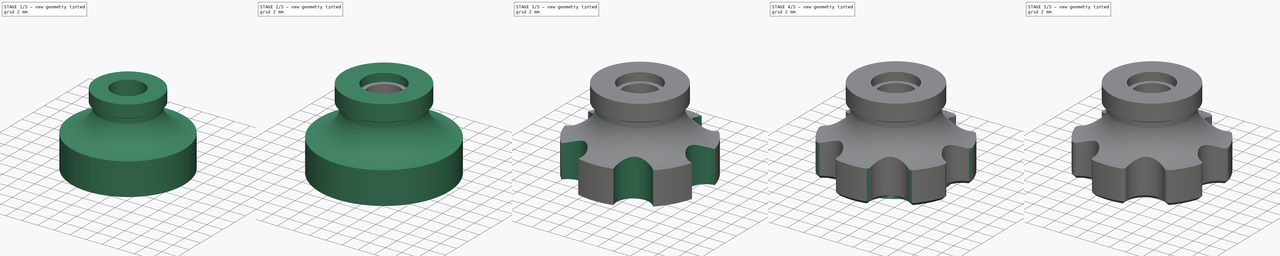
[diagram: build sequence overview — one tinted view per stage of 5, left to right]
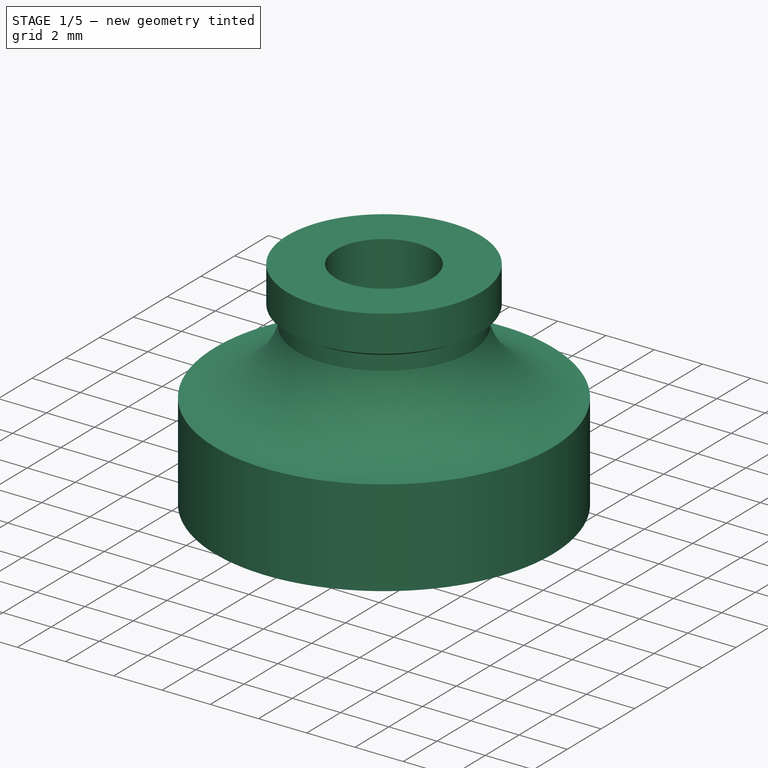
[diagram: stage 1 of 5 — iso view after this stage's code; geometry added in this stage tinted green]
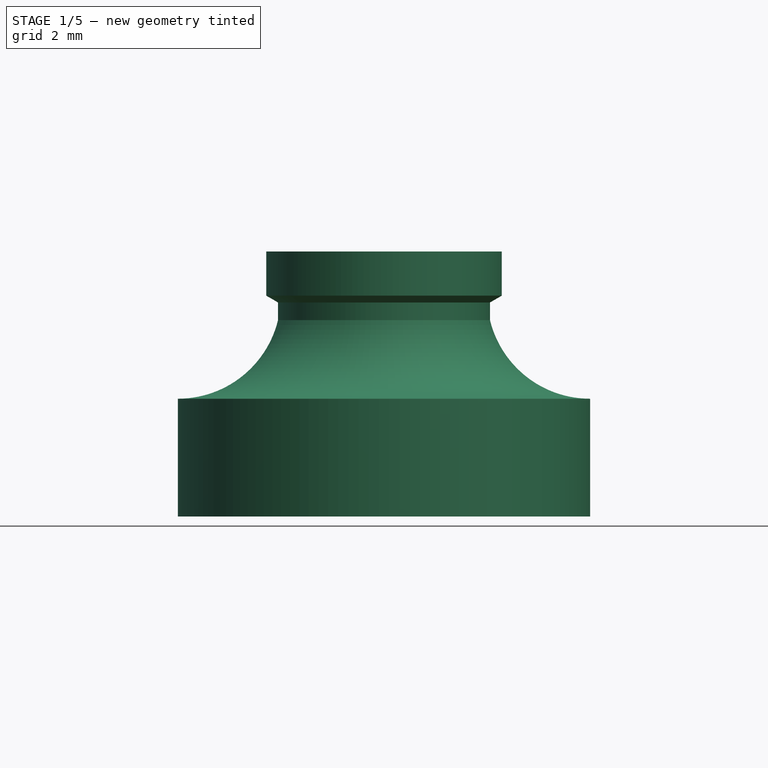
[diagram: stage 1 of 5 — front view after this stage's code; geometry added in this stage tinted green]
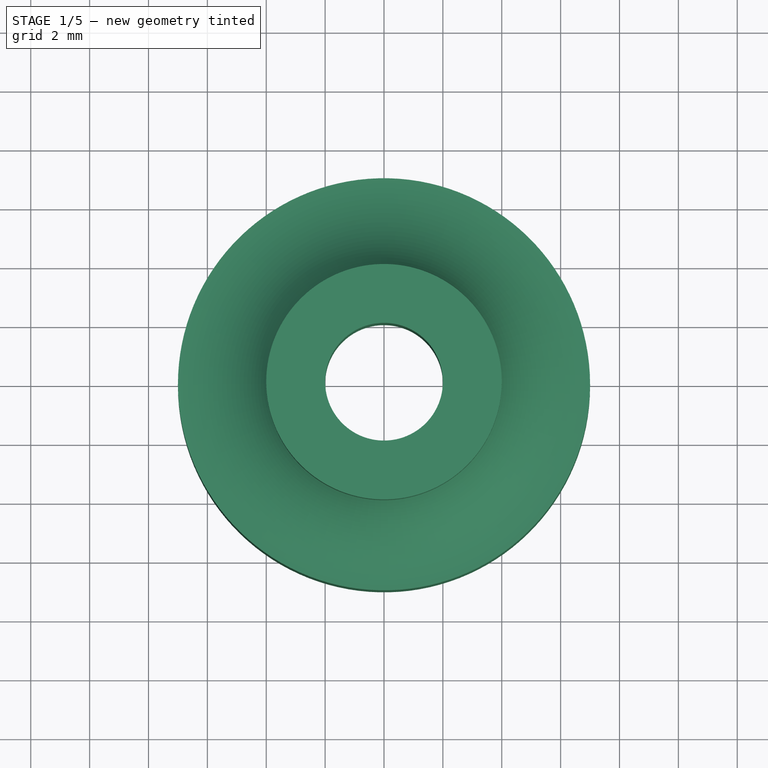
[diagram: stage 1 of 5 — top view after this stage's code; geometry added in this stage tinted green]
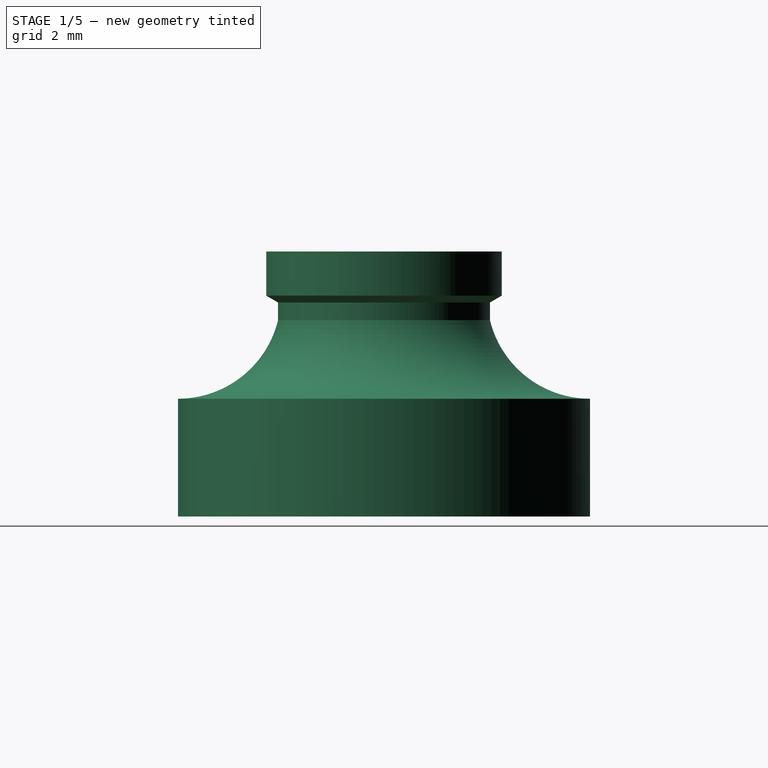
[diagram: stage 1 of 5 — right view after this stage's code; geometry added in this stage tinted green]
FCSTD DOCUMENT  (FreeCAD 0.21RUnknown)
Label: Knobs
License: All rights reserved
LicenseURL: http://en.wikipedia.org/wiki/All_rights_reserved
objects: Sketcher::SketchObject×13, PartDesign::Pocket×10, PartDesign::Revolution×3, PartDesign::Fillet×3, PartDesign::Chamfer×3, PartDesign::Body×3
note: 54 computed .brp shape members not serialized (recipe doc carries the construction recipe); baked Part::Feature solids carry a one-line shape summary decoded from their .brp

FEATURE [PartDesign::Body] Body001  label="M5HexCover"
  Group = -> [Sketch004,Revolution001,Sketch005,Pocket003,Sketch006,Pocket004,Sketch007,Pocket005,Fillet001,Chamfer001]
  Origin = -> Origin001
  Tip = -> Chamfer001
FEATURE [Sketcher::SketchObject] Sketch008
  FullyConstrained = true
  MapMode = 5
  Placement = pos=(0,0,0) rot=(1,0,0;1.5708rad)
  Support = -> [XZ_Plane002]
  sketch-geometry (8):
    g0: LineSegment StartX=2 StartY=9 StartZ=0 EndX=4 EndY=9 EndZ=0
    g1: LineSegment StartX=4 StartY=9 StartZ=0 EndX=4 EndY=7.5 EndZ=0
    g2: LineSegment StartX=4 StartY=7.5 StartZ=0 EndX=3.6 EndY=7.26906 EndZ=0
    g3: LineSegment StartX=3.6 StartY=7.26906 StartZ=0 EndX=3.6 EndY=6.66906 EndZ=0
    g4: ArcOfCircle CenterX=7 CenterY=7.50009 CenterZ=0 NormalX=0 NormalY=0 NormalZ=1 AngleXU=0 Radius=3.50009 StartAngle=3.38131 EndAngle=4.71239
    g5: LineSegment StartX=7 StartY=4 StartZ=0 EndX=7 EndY=0 EndZ=0
    g6: LineSegment StartX=7 StartY=0 StartZ=0 EndX=2 EndY=0 EndZ=0
    g7: LineSegment StartX=2 StartY=0 StartZ=0 EndX=2 EndY=9 EndZ=0
  constraints (25):
    c: Horizontal(g0)
    c: Coincident(g1,g0)
    c: Vertical(g1)
    c: Coincident(g2,g1)
    c: Coincident(g3,g2)
    c: Coincident(g5,g4)
    c: Vertical(g5)
    c: Coincident(g6,g5)
    c: Horizontal(g6)
    c: Coincident(g7,g0)
    c: Vertical(g7)
    c: DistanceX(g0) = 4
    c: DistanceY(g0) = 9
    c: DistanceY(g1,g1) = 1.5
    c: Angle(g1,g2) = 2.0944
    c: DistanceX(g5) = 7
    c: DistanceY(g4) = 4
    c: Coincident(g6,g7)
    c: PointOnObject(g6,g-1)
    c: DistanceX(g-1,g6) = 2
    c: DistanceX(g2) = 3.6
    c: PointOnObject(g4,g5)
    c: Coincident(g4,g3)
    c: Vertical(g3)
    c: DistanceY(g3,g3) = 0.6
FEATURE [PartDesign::Revolution] Revolution002
  Angle = 360
  Axis = (1e-16,1e-16,1)
  Base = (0,0,0)
  Placement = pos=(0,0,0) rot=(1,0,0;1.5708rad)
  Profile = -> Sketch008
  ReferenceAxis = -> Z_Axis002
  Reversed = true
FEATURE [Sketcher::SketchObject] Sketch009
  FullyConstrained = true
  MapMode = 5
  Support = -> [XY_Plane002]
  sketch-geometry (10):
    g0: LineSegment StartX=0 StartY=4.18579 StartZ=0 EndX=3.625 EndY=2.09289 EndZ=0
    g1: LineSegment StartX=0 StartY=4.18579 StartZ=0 EndX=-3.625 EndY=2.09289 EndZ=0
    g2: LineSegment StartX=-3.625 StartY=2.09289 StartZ=0 EndX=-3.625 EndY=-2.09289 EndZ=0
    g3: LineSegment StartX=3.625 StartY=2.09289 StartZ=0 EndX=3.625 EndY=-2.09289 EndZ=0
    g4: LineSegment StartX=3.625 StartY=-2.09289 StartZ=0 EndX=4e-16 EndY=-4.18579 EndZ=0
    g5: LineSegment StartX=4e-16 StartY=-4.18579 StartZ=0 EndX=-3.625 EndY=-2.09289 EndZ=0
    g6: LineSegment StartX=-3.625 StartY=2.09289 StartZ=0 EndX=4e-16 EndY=-4.18579 EndZ=0
    g7: LineSegment StartX=4e-16 StartY=-4.18579 StartZ=0 EndX=3.625 EndY=2.09289 EndZ=0
    g8: LineSegment StartX=3.625 StartY=2.09289 StartZ=0 EndX=-3.625 EndY=2.09289 EndZ=0
    g9: Circle CenterX=0 CenterY=0 CenterZ=0 NormalX=0 NormalY=0 NormalZ=1 AngleXU=0 Radius=3.5
  constraints (25):
    c: PointOnObject(g0,g-2)
    c: Coincident(g1,g0)
    c: Coincident(g2,g1)
    c: Coincident(g3,g0)
    c: Vertical(g3)
    c: Coincident(g4,g3)
    c: PointOnObject(g4,g-2)
    c: Coincident(g5,g4)
    c: Coincident(g5,g2)
    c: Equal(g2,g1)
    c: Equal(g1,g0)
    c: Equal(g0,g3)
    c: Equal(g3,g4)
    c: Equal(g4,g5)
    c: Symmetric(g1,g2,g-1)
    c: Coincident(g6,g1)
    c: Coincident(g6,g4)
    c: Coincident(g7,g4)
    c: Coincident(g7,g0)
    c: Coincident(g8,g0)
    c: Coincident(g8,g1)
    c: Equal(g8,g6)
    c: DistanceX(g2,g3) = 7.25
    c: Coincident(g9,g-1)
    c: Diameter(g9) = 7
FEATURE [PartDesign::Pocket] Pocket006
  BaseFeature = -> Revolution002
  Direction = (0,0,-1)
  Length = 4
  Length2 = 5
  Placement = pos=(0,0,0) rot=(1,0,0;1.5708rad)
  Profile = -> Sketch009
  ReferenceAxis = -> Sketch009 [N_Axis]
  Reversed = true
  Type = 0
FEATURE [Sketcher::SketchObject] Sketch010
  ExternalGeometry = -> [Pocket006]
  FullyConstrained = true
  MapMode = 5
  Placement = pos=(0,4e-16,4) rot=(1,0,0;3.14159rad)
  Support = -> [Pocket006]
  sketch-geometry (6):
    g0: LineSegment StartX=-2 StartY=2.87228 StartZ=0 EndX=-2 EndY=-2.87228 EndZ=0
    g1: LineSegment StartX=2 StartY=-2.87228 StartZ=0 EndX=2 EndY=2.87228 EndZ=0
    g2: GeomPoint X=2 Y=0 Z=0
    g3: GeomPoint X=-2 Y=0 Z=0
    g4: ArcOfCircle CenterX=0 CenterY=0 CenterZ=0 NormalX=0 NormalY=0 NormalZ=1 AngleXU=0 Radius=3.5 StartAngle=0.962551 EndAngle=2.17904
    g5: ArcOfCircle CenterX=0 CenterY=0 CenterZ=0 NormalX=0 NormalY=0 NormalZ=1 AngleXU=0 Radius=3.5 StartAngle=4.10414 EndAngle=5.32063
  constraints (16):
    c: PointOnObject(g0,g-4)
    c: Vertical(g0)
    c: PointOnObject(g1,g-4)
    c: Vertical(g1)
    c: PointOnObject(g2,g1)
    c: PointOnObject(g3,g0)
    c: PointOnObject(g3,g-1)
    c: PointOnObject(g2,g-1)
    c: PointOnObject(g2,g-3)
    c: PointOnObject(g3,g-3)
    c: Coincident(g4,g-4)
    c: Coincident(g4,g0)
    c: Coincident(g5,g4)
    c: Coincident(g5,g1)
    c: Coincident(g0,g5)
    c: Coincident(g4,g1)
FEATURE [PartDesign::Pocket] Pocket007
  BaseFeature = -> Pocket006
  Direction = (0,1e-16,1)
  Length = 0.2
  Length2 = 5
  Placement = pos=(0,0,0) rot=(1,0,0;1.5708rad)
  Profile = -> Sketch010
  ReferenceAxis = -> Sketch010 [N_Axis]
  Type = 0
FEATURE [Sketcher::SketchObject] Sketch011
  ExternalGeometry = -> [Pocket006]
  FullyConstrained = true
  MapMode = 5
  Support = -> [XY_Plane002]
  sketch-geometry (15):
    g0: Circle CenterX=0 CenterY=0 CenterZ=0 NormalX=0 NormalY=0 NormalZ=1 AngleXU=0 Radius=6.42032
    g1: Circle CenterX=-3.21016 CenterY=5.56016 CenterZ=0 NormalX=0 NormalY=0 NormalZ=1 AngleXU=0 Radius=1.72032
    g2: Circle CenterX=3.21016 CenterY=5.56016 CenterZ=0 NormalX=0 NormalY=0 NormalZ=1 AngleXU=0 Radius=1.72032
    g3: Circle CenterX=6.42032 CenterY=0 CenterZ=0 NormalX=0 NormalY=0 NormalZ=1 AngleXU=0 Radius=1.72032
    g4: Circle CenterX=3.21016 CenterY=-5.56016 CenterZ=0 NormalX=0 NormalY=0 NormalZ=1 AngleXU=0 Radius=1.72032
    g5: Circle CenterX=-3.21016 CenterY=-5.56016 CenterZ=0 NormalX=0 NormalY=0 NormalZ=1 AngleXU=0 Radius=1.72032
    g6: Circle CenterX=-6.42032 CenterY=0 CenterZ=0 NormalX=0 NormalY=0 NormalZ=1 AngleXU=0 Radius=1.72032
    g7: LineSegment StartX=3.21016 StartY=-5.56016 StartZ=0 EndX=-3.21016 EndY=5.56016 EndZ=0
    g8: LineSegment StartX=3.21016 StartY=5.56016 StartZ=0 EndX=-3.21016 EndY=-5.56016 EndZ=0
    g9: GeomPoint X=2.35 Y=4.07032 Z=0
    g10: GeomPoint X=1.75 Y=3.03109 Z=0
    g11: LineSegment StartX=-3.21016 StartY=5.56016 StartZ=0 EndX=-3.21016 EndY=-5.56016 EndZ=0
    g12: LineSegment StartX=-3.21016 StartY=-5.56016 StartZ=0 EndX=6.42032 EndY=0 EndZ=0
    g13: LineSegment StartX=-1.72032 StartY=6.42032 StartZ=0 EndX=1.72032 EndY=6.42032 EndZ=0
    g14: LineSegment StartX=1.72032 StartY=6.42032 StartZ=0 EndX=4.7 EndY=4.7 EndZ=0
  constraints (39):
    c: Coincident(g0,g-1)
    c: PointOnObject(g6,g-1)
    c: PointOnObject(g3,g-1)
    c: Coincident(g7,g4)
    c: Coincident(g7,g1)
    c: Coincident(g8,g2)
    c: Coincident(g8,g5)
    c: Equal(g2,g1)
    c: Equal(g1,g6)
    c: Equal(g6,g5)
    c: Equal(g5,g3)
    c: Equal(g3,g4)
    c: PointOnObject(g9,g2)
    c: PointOnObject(g10,g8)
    c: PointOnObject(g9,g8)
    c: PointOnObject(g2,g0)
    c: PointOnObject(g1,g0)
    c: PointOnObject(g6,g0)
    c: PointOnObject(g5,g0)
    c: PointOnObject(g4,g0)
    c: PointOnObject(g3,g0)
    c: PointOnObject(g0,g8)
    c: PointOnObject(g0,g7)
    c: Coincident(g11,g1)
    c: Coincident(g11,g5)
    c: Vertical(g11)
    c: Coincident(g12,g5)
    c: Coincident(g12,g3)
    c: Equal(g12,g11)
    c: PointOnObject(g10,g-4)
    c: Distance(g10,g9) = 1.2
    c: PointOnObject(g13,g1)
    c: PointOnObject(g13,g2)
    c: Horizontal(g13)
    c: Coincident(g14,g13)
    c: PointOnObject(g14,g2)
    c: Perpendicular(g8,g14)
    c: Equal(g13,g14)
    c: PointOnObject(g2,g14)
FEATURE [Sketcher::SketchObject] Sketch012
  AttachmentOffset = pos=(0,0,4) rot=(0,0,1;0rad)
  ExternalGeometry = -> [Revolution002]
  FullyConstrained = true
  MapMode = 5
  Placement = pos=(0,0,4) rot=(0,0,1;0rad)
  Support = -> [XY_Plane002]
  sketch-geometry (8):
    g0: LineSegment StartX=-2 StartY=2 StartZ=0 EndX=2 EndY=2 EndZ=0
    g1: LineSegment StartX=2 StartY=2 StartZ=0 EndX=2 EndY=-2 EndZ=0
    g2: LineSegment StartX=2 StartY=-2 StartZ=0 EndX=-2 EndY=-2 EndZ=0
    g3: LineSegment StartX=-2 StartY=-2 StartZ=0 EndX=-2 EndY=2 EndZ=0
    g4: GeomPoint X=0 Y=-2 Z=0
    g5: GeomPoint X=2 Y=0 Z=0
    g6: GeomPoint X=0 Y=2 Z=0
    g7: GeomPoint X=-2 Y=0 Z=0
  constraints (20):
    c: Coincident(g0,g1)
    c: Coincident(g1,g2)
    c: Coincident(g2,g3)
    c: Coincident(g3,g0)
    c: Horizontal(g0)
    c: Horizontal(g2)
    c: Vertical(g1)
    c: Vertical(g3)
    c: Equal(g2,g1)
    c: PointOnObject(g4,g-3)
    c: PointOnObject(g5,g1)
    c: PointOnObject(g6,g0)
    c: PointOnObject(g7,g3)
    c: PointOnObject(g7,g-1)
    c: PointOnObject(g5,g-1)
    c: PointOnObject(g6,g-2)
    c: PointOnObject(g4,g-2)
    c: PointOnObject(g4,g2)
    c: PointOnObject(g6,g-3)
    c: PointOnObject(g5,g-3)
FEATURE [PartDesign::Pocket] Pocket008
  BaseFeature = -> Pocket007
  Direction = (0,0,-1)
  Length = 0.4
  Length2 = 5
  Placement = pos=(0,0,0) rot=(1,0,0;1.5708rad)
  Profile = -> Sketch012
  ReferenceAxis = -> Sketch012 [N_Axis]
  Reversed = true
  Type = 0
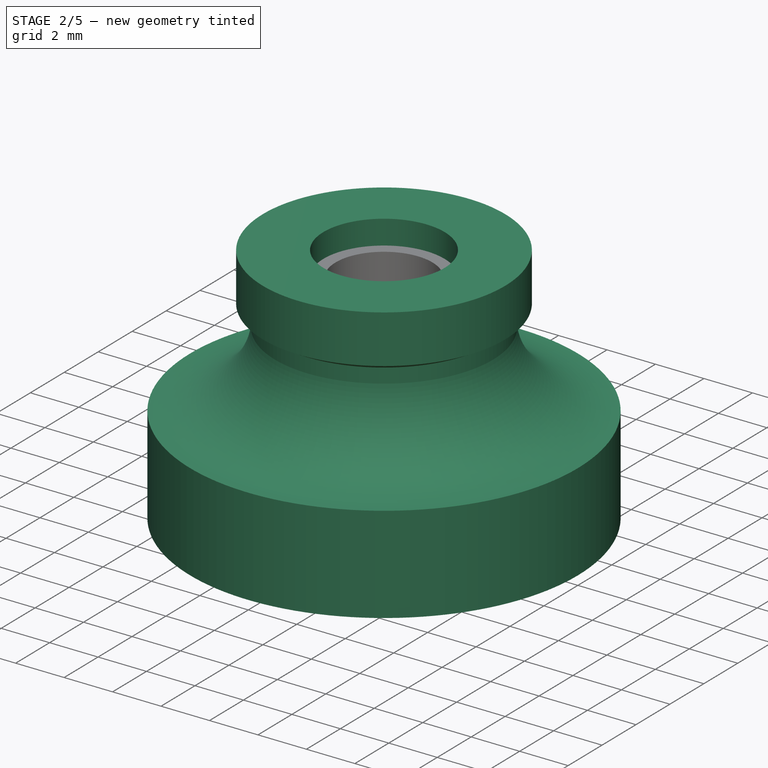
[diagram: stage 2 of 5 — iso view after this stage's code; geometry added in this stage tinted green]
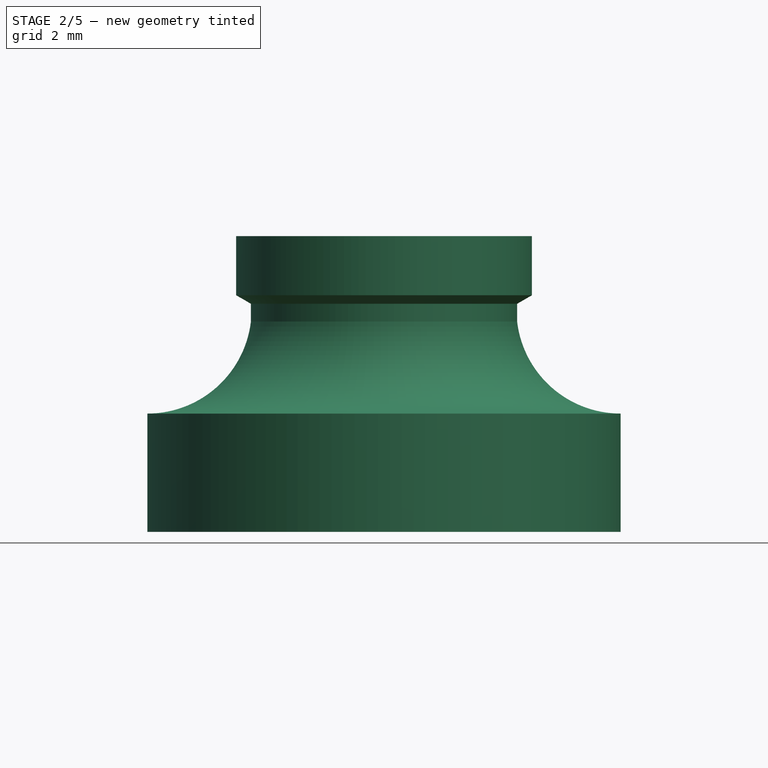
[diagram: stage 2 of 5 — front view after this stage's code; geometry added in this stage tinted green]
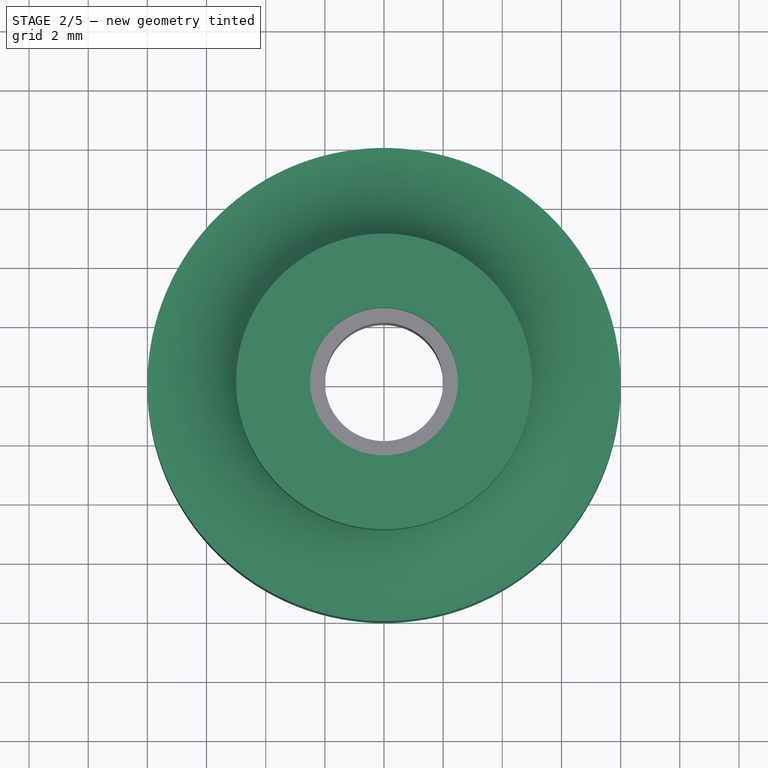
[diagram: stage 2 of 5 — top view after this stage's code; geometry added in this stage tinted green]
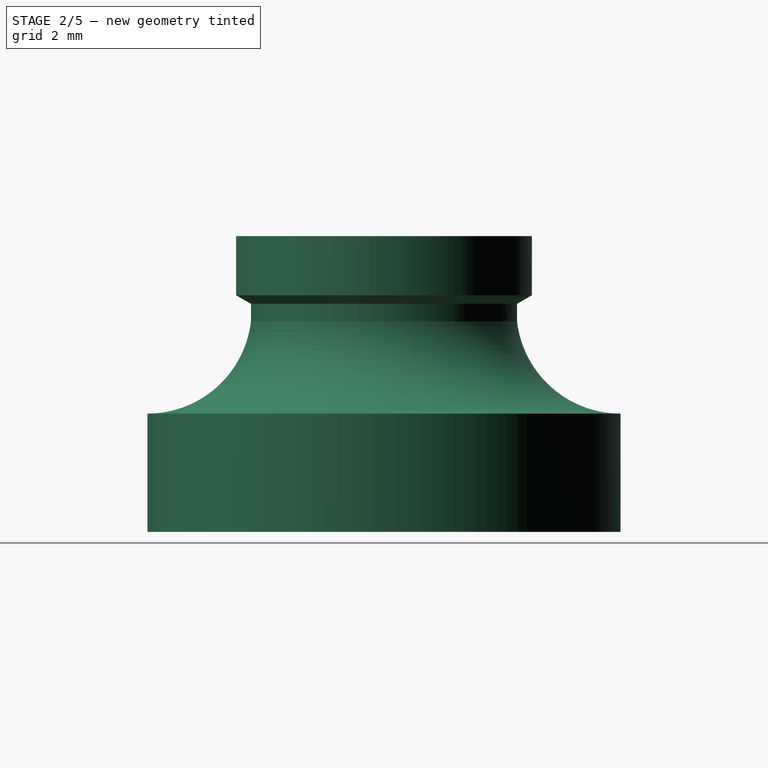
[diagram: stage 2 of 5 — right view after this stage's code; geometry added in this stage tinted green]
FEATURE [PartDesign::Body] Body  label="M4HexCover"
  Group = -> [Sketch,Revolution,Sketch001,Pocket,Sketch002,Pocket001,Sketch003,Pocket002,Fillet,Chamfer]
  Origin = -> Origin
  Tip = -> Chamfer
FEATURE [Sketcher::SketchObject] Sketch004
  FullyConstrained = true
  MapMode = 5
  Placement = pos=(0,0,0) rot=(1,0,0;1.5708rad)
  Support = -> [XZ_Plane001]
  sketch-geometry (8):
    g0: LineSegment StartX=2.5 StartY=10 StartZ=0 EndX=5 EndY=10 EndZ=0
    g1: LineSegment StartX=5 StartY=10 StartZ=0 EndX=5 EndY=8 EndZ=0
    g2: LineSegment StartX=5 StartY=8 StartZ=0 EndX=4.5 EndY=7.71132 EndZ=0
    g3: LineSegment StartX=4.5 StartY=7.71132 StartZ=0 EndX=4.5 EndY=7.11132 EndZ=0
    g4: ArcOfCircle CenterX=8 CenterY=7.52428 CenterZ=0 NormalX=0 NormalY=0 NormalZ=1 AngleXU=0 Radius=3.52428 StartAngle=3.25904 EndAngle=4.71239
    g5: LineSegment StartX=8 StartY=4 StartZ=0 EndX=8 EndY=0 EndZ=0
    g6: LineSegment StartX=8 StartY=0 StartZ=0 EndX=2.5 EndY=0 EndZ=0
    g7: LineSegment StartX=2.5 StartY=0 StartZ=0 EndX=2.5 EndY=10 EndZ=0
  constraints (25):
    c: Horizontal(g0)
    c: Coincident(g1,g0)
    c: Vertical(g1)
    c: Coincident(g2,g1)
    c: Coincident(g3,g2)
    c: Coincident(g5,g4)
    c: Vertical(g5)
    c: Coincident(g6,g5)
    c: Horizontal(g6)
    c: Coincident(g7,g0)
    c: Vertical(g7)
    c: DistanceX(g0) = 5
    c: DistanceY(g0) = 10
    c: DistanceY(g1,g1) = 2
    c: Angle(g1,g2) = 2.0944
    c: DistanceX(g5) = 8
    c: DistanceY(g4) = 4
    c: Coincident(g6,g7)
    c: PointOnObject(g6,g-1)
    c: DistanceX(g-1,g6) = 2.5
    c: DistanceX(g2) = 4.5
    c: PointOnObject(g4,g5)
    c: Coincident(g4,g3)
    c: Vertical(g3)
    c: DistanceY(g3,g3) = 0.6
FEATURE [PartDesign::Revolution] Revolution001
  Angle = 360
  Axis = (1e-16,1e-16,1)
  Base = (0,0,0)
  Placement = pos=(0,0,0) rot=(1,0,0;1.5708rad)
  Profile = -> Sketch004
  ReferenceAxis = -> Z_Axis001
  Reversed = true
FEATURE [PartDesign::Pocket] Pocket009
  BaseFeature = -> Pocket008
  Direction = (0,0,-1)
  Length = 5
  Length2 = 5
  Midplane = true
  Placement = pos=(0,0,0) rot=(1,0,0;1.5708rad)
  Profile = -> Sketch011
  ReferenceAxis = -> Sketch011 [N_Axis]
  Type = 1
FEATURE [PartDesign::Fillet] Fillet002
  Base = -> Pocket009 [Edge101,Edge98,Edge95,Edge92,Edge89,Edge88,Edge86,Edge107,Edge104,Edge110,Edge111,Edge84]
  BaseFeature = -> Pocket009
  Placement = pos=(0,0,0) rot=(1,0,0;1.5708rad)
  Radius = 0.8
  SupportTransform = false
  UseAllEdges = false
FEATURE [PartDesign::Chamfer] Chamfer002
  Angle = 45
  Base = -> Fillet002 [Edge51]
  BaseFeature = -> Fillet002
  ChamferType = 0
  FlipDirection = false
  Placement = pos=(0,0,0) rot=(1,0,0;1.5708rad)
  Size = 0.4
  Size2 = 1
  SupportTransform = false
  UseAllEdges = false
FEATURE [PartDesign::Body] Body002  label="M4ScrewCover"
  Group = -> [Sketch008,Revolution002,Sketch009,Pocket006,Sketch010,Pocket007,Sketch011,Sketch012,Pocket008,Pocket009,Fillet002,Chamfer002]
  Origin = -> Origin002
  Tip = -> Chamfer002
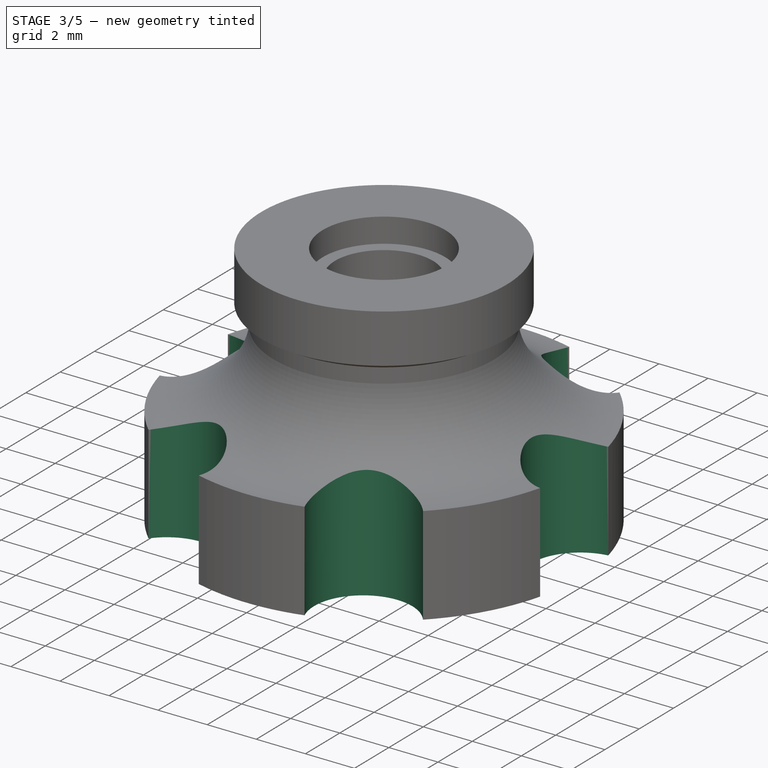
[diagram: stage 3 of 5 — iso view after this stage's code; geometry added in this stage tinted green]
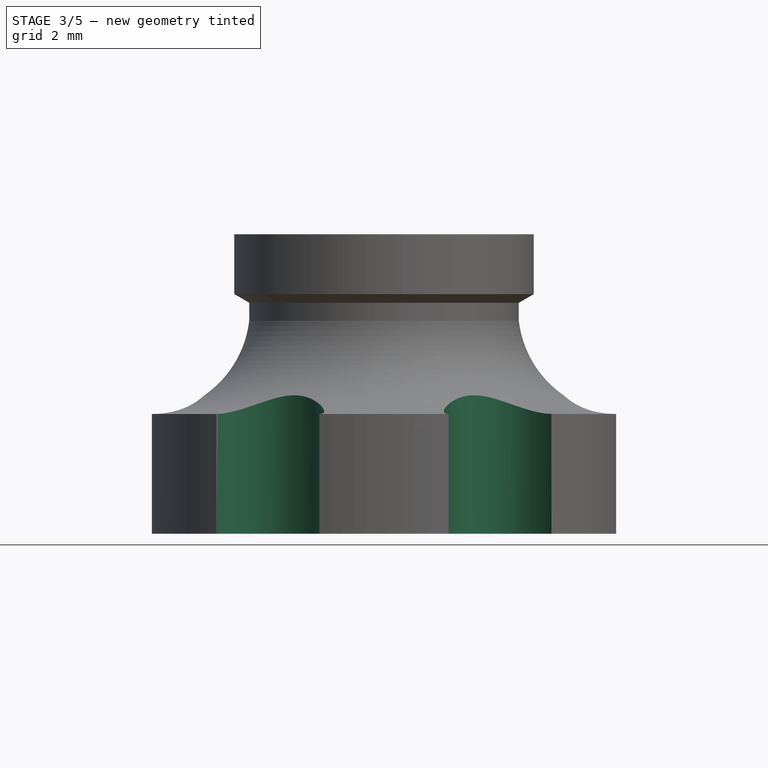
[diagram: stage 3 of 5 — front view after this stage's code; geometry added in this stage tinted green]
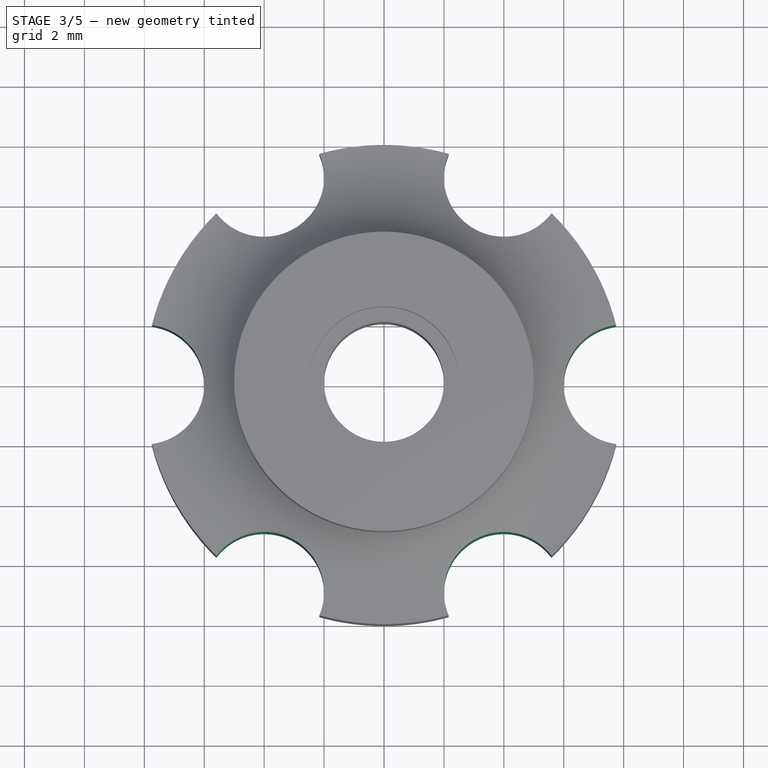
[diagram: stage 3 of 5 — top view after this stage's code; geometry added in this stage tinted green]
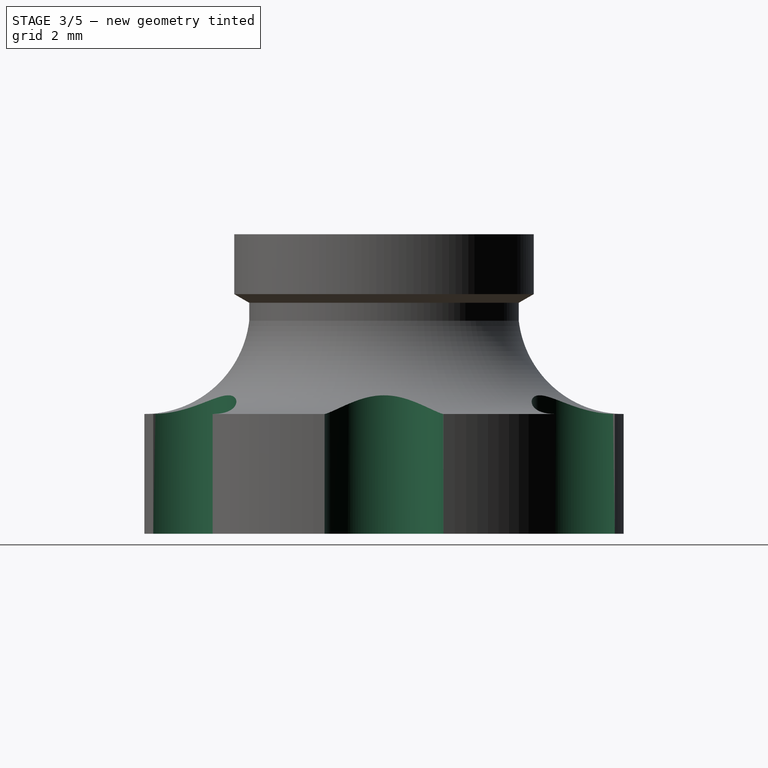
[diagram: stage 3 of 5 — right view after this stage's code; geometry added in this stage tinted green]
FEATURE [Sketcher::SketchObject] Sketch005
  FullyConstrained = true
  MapMode = 5
  Support = -> [XY_Plane001]
  sketch-geometry (9):
    g0: LineSegment StartX=0 StartY=4.76314 StartZ=0 EndX=4.125 EndY=2.38157 EndZ=0
    g1: LineSegment StartX=0 StartY=4.76314 StartZ=0 EndX=-4.125 EndY=2.38157 EndZ=0
    g2: LineSegment StartX=-4.125 StartY=2.38157 StartZ=0 EndX=-4.125 EndY=-2.38157 EndZ=0
    g3: LineSegment StartX=4.125 StartY=2.38157 StartZ=0 EndX=4.125 EndY=-2.38157 EndZ=0
    g4: LineSegment StartX=4.125 StartY=-2.38157 StartZ=0 EndX=0 EndY=-4.76314 EndZ=0
    g5: LineSegment StartX=0 StartY=-4.76314 StartZ=0 EndX=-4.125 EndY=-2.38157 EndZ=0
    g6: LineSegment StartX=-4.125 StartY=2.38157 StartZ=0 EndX=0 EndY=-4.76314 EndZ=0
    g7: LineSegment StartX=0 StartY=-4.76314 StartZ=0 EndX=4.125 EndY=2.38157 EndZ=0
    g8: LineSegment StartX=4.125 StartY=2.38157 StartZ=0 EndX=-4.125 EndY=2.38157 EndZ=0
  constraints (23):
    c: PointOnObject(g0,g-2)
    c: Coincident(g1,g0)
    c: Coincident(g2,g1)
    c: Coincident(g3,g0)
    c: Vertical(g3)
    c: Coincident(g4,g3)
    c: PointOnObject(g4,g-2)
    c: Coincident(g5,g4)
    c: Coincident(g5,g2)
    c: Equal(g2,g1)
    c: Equal(g1,g0)
    c: Equal(g0,g3)
    c: Equal(g3,g4)
    c: Equal(g4,g5)
    c: Symmetric(g1,g2,g-1)
    c: Coincident(g6,g1)
    c: Coincident(g6,g4)
    c: Coincident(g7,g4)
    c: Coincident(g7,g0)
    c: Coincident(g8,g0)
    c: Coincident(g8,g1)
    c: Equal(g8,g6)
    c: DistanceX(g2,g3) = 8.25
FEATURE [PartDesign::Pocket] Pocket003
  BaseFeature = -> Revolution001
  Direction = (0,0,-1)
  Length = 3.2
  Length2 = 5
  Placement = pos=(0,0,0) rot=(1,0,0;1.5708rad)
  Profile = -> Sketch005
  ReferenceAxis = -> Sketch005 [N_Axis]
  Reversed = true
  Type = 0
FEATURE [Sketcher::SketchObject] Sketch006
  ExternalGeometry = -> [Pocket003]
  FullyConstrained = true
  MapMode = 5
  Placement = pos=(0,0,3.2) rot=(1,0,0;3.14159rad)
  Support = -> [Pocket003]
  sketch-geometry (11):
    g0: LineSegment StartX=-1.625 StartY=3.82494 StartZ=0 EndX=4.125 EndY=0.505186 EndZ=0
    g1: LineSegment StartX=4.125 StartY=-0.505182 StartZ=0 EndX=-1.625 EndY=-3.82495 EndZ=0
    g2: LineSegment StartX=-2.5 StartY=-3.31976 StartZ=0 EndX=-2.5 EndY=3.31976 EndZ=0
    g3: GeomPoint X=-2.5 Y=0 Z=0
    g4: GeomPoint X=1.25 Y=2.16507 Z=0
    g5: GeomPoint X=1.25 Y=-2.16506 Z=0
    g6: LineSegment StartX=4e-16 StartY=-4e-16 StartZ=0 EndX=1.25 EndY=2.16507 EndZ=0
    g7: LineSegment StartX=4e-16 StartY=-4e-16 StartZ=0 EndX=1.25 EndY=-2.16506 EndZ=0
    g8: LineSegment StartX=-2.5 StartY=3.31976 StartZ=0 EndX=-1.625 EndY=3.82494 EndZ=0
    g9: LineSegment StartX=4.125 StartY=0.505186 StartZ=0 EndX=4.125 EndY=-0.505182 EndZ=0
    g10: LineSegment StartX=-2.5 StartY=-3.31976 StartZ=0 EndX=-1.625 EndY=-3.82495 EndZ=0
  constraints (28):
    c: PointOnObject(g0,g-3)
    c: PointOnObject(g0,g-5)
    c: PointOnObject(g1,g-5)
    c: PointOnObject(g1,g-4)
    c: PointOnObject(g2,g-4)
    c: PointOnObject(g2,g-3)
    c: Vertical(g2)
    c: PointOnObject(g3,g2)
    c: PointOnObject(g4,g0)
    c: PointOnObject(g5,g1)
    c: PointOnObject(g4,g-6)
    c: PointOnObject(g5,g-6)
    c: PointOnObject(g3,g-6)
    c: PointOnObject(g3,g-1)
    c: Coincident(g6,g-6)
    c: Coincident(g6,g4)
    c: Coincident(g7,g6)
    c: Coincident(g7,g5)
    c: Perpendicular(g1,g7)
    c: Perpendicular(g0,g6)
    c: Equal(g2,g0)
    c: Equal(g0,g1)
    c: Coincident(g8,g2)
    c: Coincident(g8,g0)
    c: Coincident(g9,g0)
    c: Coincident(g9,g1)
    c: Coincident(g10,g2)
    c: Coincident(g10,g1)
FEATURE [PartDesign::Pocket] Pocket004
  BaseFeature = -> Pocket003
  Direction = (0,0,1)
  Length = 0.2
  Length2 = 5
  Placement = pos=(0,0,0) rot=(1,0,0;1.5708rad)
  Profile = -> Sketch006
  ReferenceAxis = -> Sketch006 [N_Axis]
  Type = 0
FEATURE [Sketcher::SketchObject] Sketch007
  ExternalGeometry = -> [Pocket004]
  FullyConstrained = true
  MapMode = 5
  Support = -> [XY_Plane001]
  sketch-geometry (11):
    g0: Circle CenterX=0 CenterY=0 CenterZ=0 NormalX=0 NormalY=0 NormalZ=1 AngleXU=0 Radius=4.76314
    g1: Circle CenterX=-4 CenterY=6.9282 CenterZ=0 NormalX=0 NormalY=0 NormalZ=1 AngleXU=0 Radius=2
    g2: Circle CenterX=4 CenterY=6.9282 CenterZ=0 NormalX=0 NormalY=0 NormalZ=1 AngleXU=0 Radius=2
    g3: Circle CenterX=8 CenterY=0 CenterZ=0 NormalX=0 NormalY=0 NormalZ=1 AngleXU=0 Radius=2
    g4: Circle CenterX=4 CenterY=-6.9282 CenterZ=0 NormalX=0 NormalY=0 NormalZ=1 AngleXU=0 Radius=2
    g5: Circle CenterX=-4 CenterY=-6.9282 CenterZ=0 NormalX=0 NormalY=0 NormalZ=1 AngleXU=0 Radius=2
    g6: Circle CenterX=-8 CenterY=0 CenterZ=0 NormalX=0 NormalY=0 NormalZ=1 AngleXU=0 Radius=2
    g7: LineSegment StartX=4 StartY=-6.9282 StartZ=0 EndX=-4 EndY=6.9282 EndZ=0
    g8: LineSegment StartX=4 StartY=6.9282 StartZ=0 EndX=-4 EndY=-6.9282 EndZ=0
    g9: GeomPoint X=3 Y=5.19615 Z=0
    g10: GeomPoint X=2.0625 Y=3.57235 Z=0
  constraints (26):
    c: Coincident(g0,g-1)
    c: PointOnObject(g-3,g0)
    c: PointOnObject(g1,g-4)
    c: PointOnObject(g2,g-4)
    c: PointOnObject(g3,g-4)
    c: PointOnObject(g4,g-4)
    c: PointOnObject(g5,g-4)
    c: PointOnObject(g6,g-4)
    c: PointOnObject(g6,g-1)
    c: PointOnObject(g3,g-1)
    c: Coincident(g7,g4)
    c: Coincident(g7,g1)
    c: Coincident(g8,g2)
    c: Coincident(g8,g5)
    c: Symmetric(g-5,g-5,g8)
    c: Symmetric(g-6,g-6,g7)
    c: Equal(g2,g1)
    c: Equal(g1,g6)
    c: Equal(g6,g5)
    c: Equal(g5,g3)
    c: Equal(g3,g4)
    c: PointOnObject(g9,g2)
    c: PointOnObject(g10,g8)
    c: PointOnObject(g10,g-5)
    c: PointOnObject(g9,g8)
    c: Distance(g9,g2) = 2
FEATURE [PartDesign::Pocket] Pocket005
  BaseFeature = -> Pocket004
  Direction = (0,0,-1)
  Length = 5
  Length2 = 5
  Midplane = true
  Placement = pos=(0,0,0) rot=(1,0,0;1.5708rad)
  Profile = -> Sketch007
  ReferenceAxis = -> Sketch007 [N_Axis]
  Type = 1
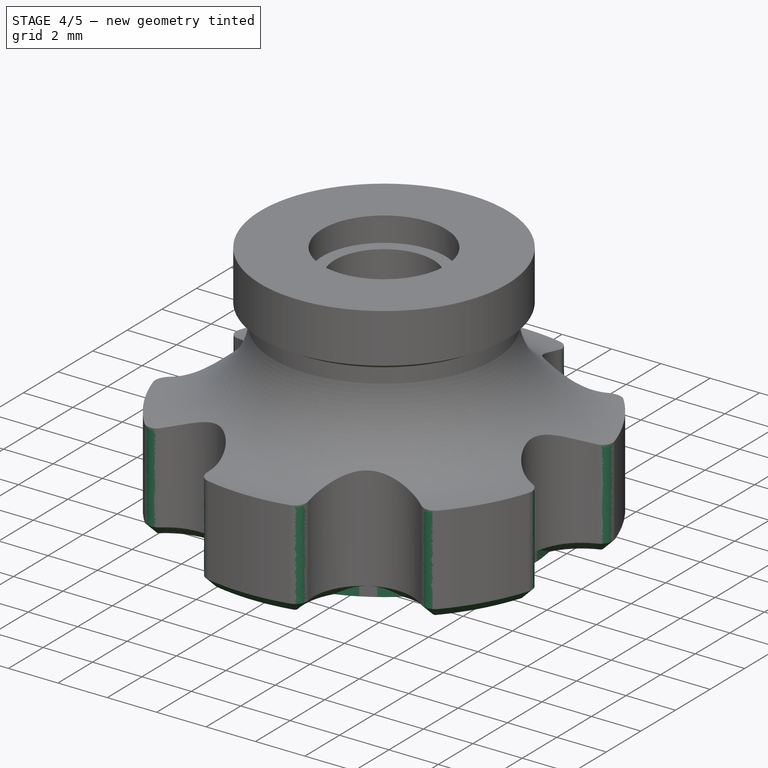
[diagram: stage 4 of 5 — iso view after this stage's code; geometry added in this stage tinted green]
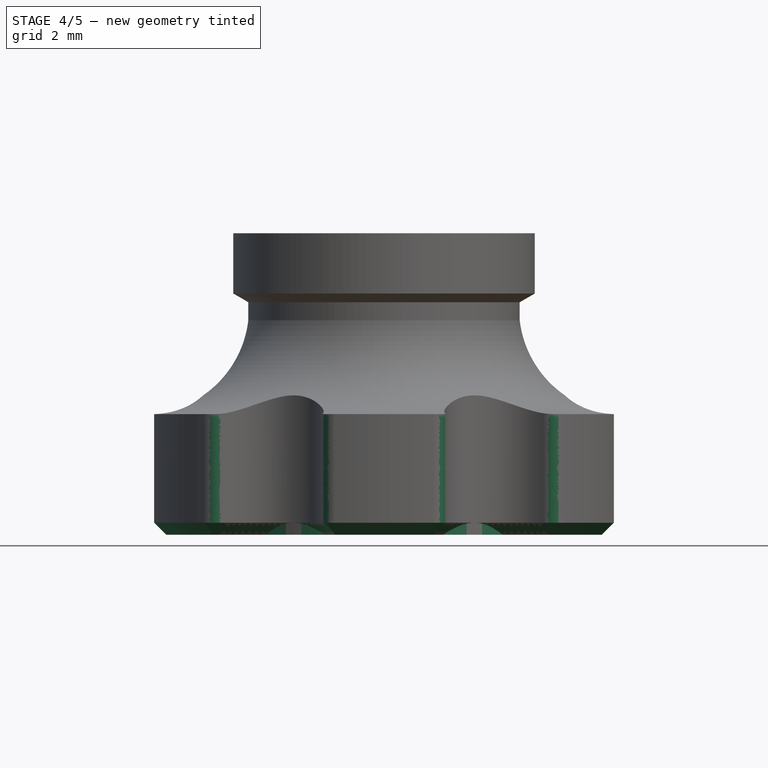
[diagram: stage 4 of 5 — front view after this stage's code; geometry added in this stage tinted green]
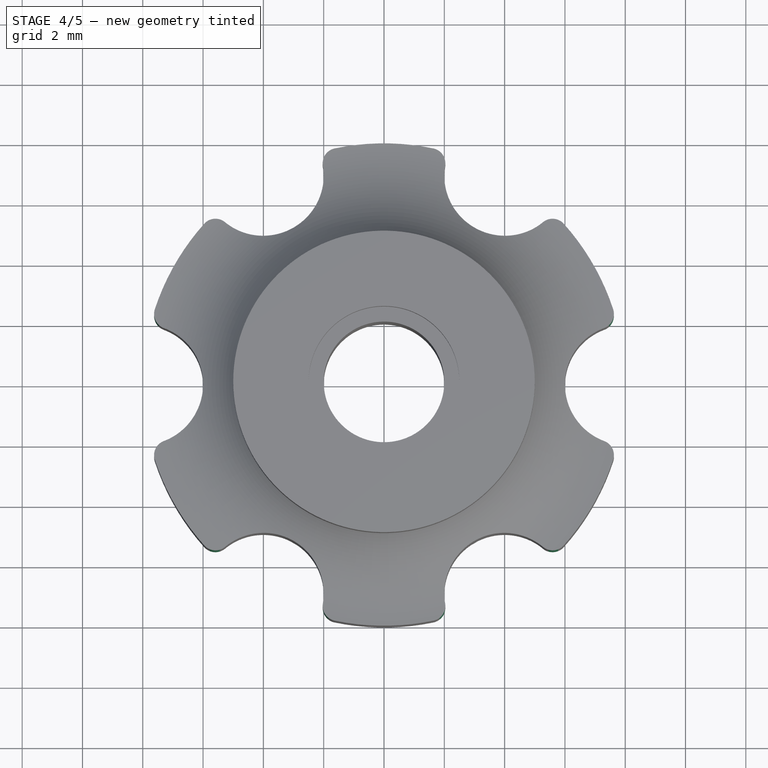
[diagram: stage 4 of 5 — top view after this stage's code; geometry added in this stage tinted green]
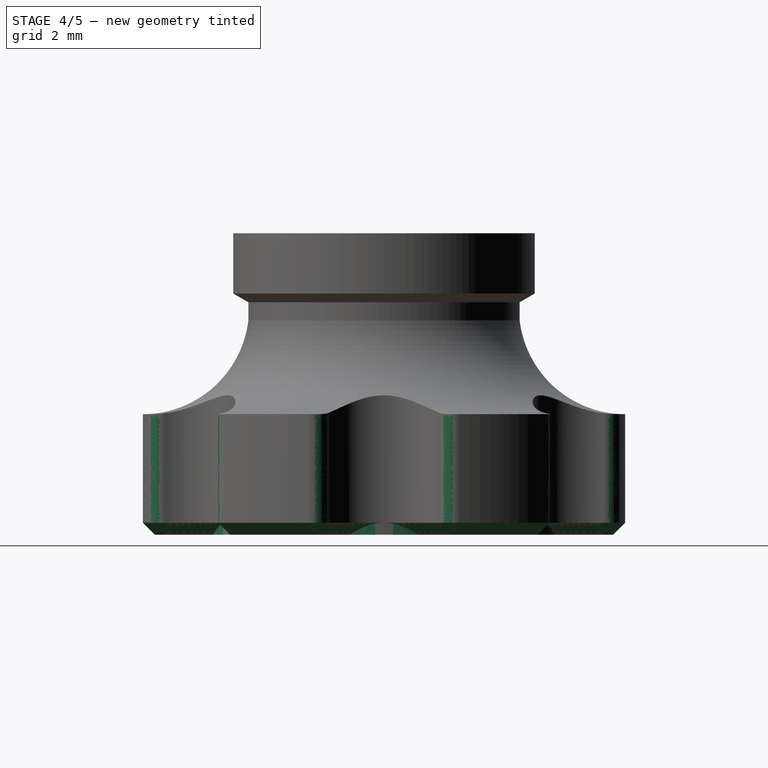
[diagram: stage 4 of 5 — right view after this stage's code; geometry added in this stage tinted green]
FEATURE [Sketcher::SketchObject] Sketch
  FullyConstrained = true
  MapMode = 5
  Placement = pos=(0,0,0) rot=(1,0,0;1.5708rad)
  Support = -> [XZ_Plane]
  sketch-geometry (8):
    g0: LineSegment StartX=2 StartY=8 StartZ=0 EndX=4 EndY=8 EndZ=0
    g1: LineSegment StartX=4 StartY=8 StartZ=0 EndX=4 EndY=6.5 EndZ=0
    g2: LineSegment StartX=4 StartY=6.5 StartZ=0 EndX=3.2 EndY=6.03812 EndZ=0
    g3: LineSegment StartX=3.2 StartY=6.03812 StartZ=0 EndX=3.2 EndY=5.43812 EndZ=0
    g4: ArcOfCircle CenterX=6 CenterY=5.82686 CenterZ=0 NormalX=0 NormalY=0 NormalZ=1 AngleXU=0 Radius=2.82686 StartAngle=3.27955 EndAngle=4.71239
    g5: LineSegment StartX=6 StartY=3 StartZ=0 EndX=6 EndY=0 EndZ=0
    g6: LineSegment StartX=6 StartY=0 StartZ=0 EndX=2 EndY=0 EndZ=0
    g7: LineSegment StartX=2 StartY=0 StartZ=0 EndX=2 EndY=8 EndZ=0
  constraints (25):
    c: Horizontal(g0)
    c: Coincident(g1,g0)
    c: Vertical(g1)
    c: Coincident(g2,g1)
    c: Coincident(g3,g2)
    c: Coincident(g5,g4)
    c: Vertical(g5)
    c: Coincident(g6,g5)
    c: Horizontal(g6)
    c: Coincident(g7,g0)
    c: Vertical(g7)
    c: DistanceX(g0) = 4
    c: DistanceY(g0) = 8
    c: DistanceY(g1,g1) = 1.5
    c: Angle(g1,g2) = 2.0944
    c: DistanceX(g5) = 6
    c: DistanceY(g4) = 3
    c: Coincident(g6,g7)
    c: PointOnObject(g6,g-1)
    c: DistanceX(g-1,g6) = 2
    c: DistanceX(g2) = 3.2
    c: PointOnObject(g4,g5)
    c: Coincident(g4,g3)
    c: Vertical(g3)
    c: DistanceY(g3,g3) = 0.6
FEATURE [PartDesign::Revolution] Revolution
  Angle = 360
  Axis = (1e-16,1e-16,1)
  Base = (0,0,0)
  Placement = pos=(0,0,0) rot=(1,0,0;1.5708rad)
  Profile = -> Sketch
  ReferenceAxis = -> Z_Axis
  Reversed = true
FEATURE [Sketcher::SketchObject] Sketch001
  FullyConstrained = true
  MapMode = 5
  Support = -> [XY_Plane]
  sketch-geometry (9):
    g0: LineSegment StartX=0 StartY=4.18579 StartZ=0 EndX=3.625 EndY=2.09289 EndZ=0
    g1: LineSegment StartX=0 StartY=4.18579 StartZ=0 EndX=-3.625 EndY=2.09289 EndZ=0
    g2: LineSegment StartX=-3.625 StartY=2.09289 StartZ=0 EndX=-3.625 EndY=-2.09289 EndZ=0
    g3: LineSegment StartX=3.625 StartY=2.09289 StartZ=0 EndX=3.625 EndY=-2.09289 EndZ=0
    g4: LineSegment StartX=3.625 StartY=-2.09289 StartZ=0 EndX=0 EndY=-4.18579 EndZ=0
    g5: LineSegment StartX=0 StartY=-4.18579 StartZ=0 EndX=-3.625 EndY=-2.09289 EndZ=0
    g6: LineSegment StartX=-3.625 StartY=2.09289 StartZ=0 EndX=4e-16 EndY=-4.18579 EndZ=0
    g7: LineSegment StartX=0 StartY=-4.18579 StartZ=0 EndX=3.625 EndY=2.09289 EndZ=0
    g8: LineSegment StartX=3.625 StartY=2.09289 StartZ=0 EndX=-3.625 EndY=2.09289 EndZ=0
  constraints (23):
    c: PointOnObject(g0,g-2)
    c: Coincident(g1,g0)
    c: Coincident(g2,g1)
    c: Coincident(g3,g0)
    c: Vertical(g3)
    c: Coincident(g4,g3)
    c: PointOnObject(g4,g-2)
    c: Coincident(g5,g4)
    c: Coincident(g5,g2)
    c: Equal(g2,g1)
    c: Equal(g1,g0)
    c: Equal(g0,g3)
    c: Equal(g3,g4)
    c: Equal(g4,g5)
    c: Symmetric(g1,g2,g-1)
    c: Coincident(g6,g1)
    c: Coincident(g6,g4)
    c: Coincident(g7,g4)
    c: Coincident(g7,g0)
    c: Coincident(g8,g0)
    c: Coincident(g8,g1)
    c: Equal(g8,g6)
    c: DistanceX(g2,g3) = 7.25
FEATURE [PartDesign::Pocket] Pocket
  BaseFeature = -> Revolution
  Direction = (0,0,-1)
  Length = 3.2
  Length2 = 5
  Placement = pos=(0,0,0) rot=(1,0,0;1.5708rad)
  Profile = -> Sketch001
  ReferenceAxis = -> Sketch001 [N_Axis]
  Reversed = true
  Type = 0
FEATURE [PartDesign::Fillet] Fillet001
  Base = -> Pocket005 [Edge100,Edge98,Edge101,Edge103,Edge97,Edge104,Edge96,Edge106,Edge107,Edge94,Edge95,Edge108]
  BaseFeature = -> Pocket005
  Placement = pos=(0,0,0) rot=(1,0,0;1.5708rad)
  Radius = 0.5
  SupportTransform = false
  UseAllEdges = false
FEATURE [PartDesign::Chamfer] Chamfer001
  Angle = 45
  Base = -> Fillet001 [Edge67]
  BaseFeature = -> Fillet001
  ChamferType = 0
  FlipDirection = false
  Placement = pos=(0,0,0) rot=(1,0,0;1.5708rad)
  Size = 0.4
  Size2 = 1
  SupportTransform = false
  UseAllEdges = false
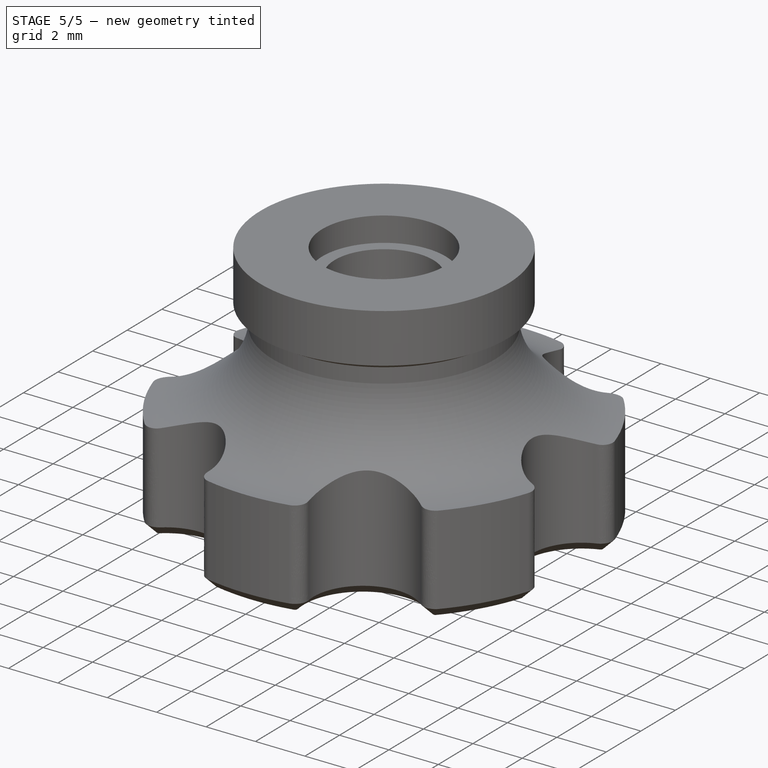
[diagram: stage 5 of 5 — iso view after this stage's code; geometry added in this stage tinted green]
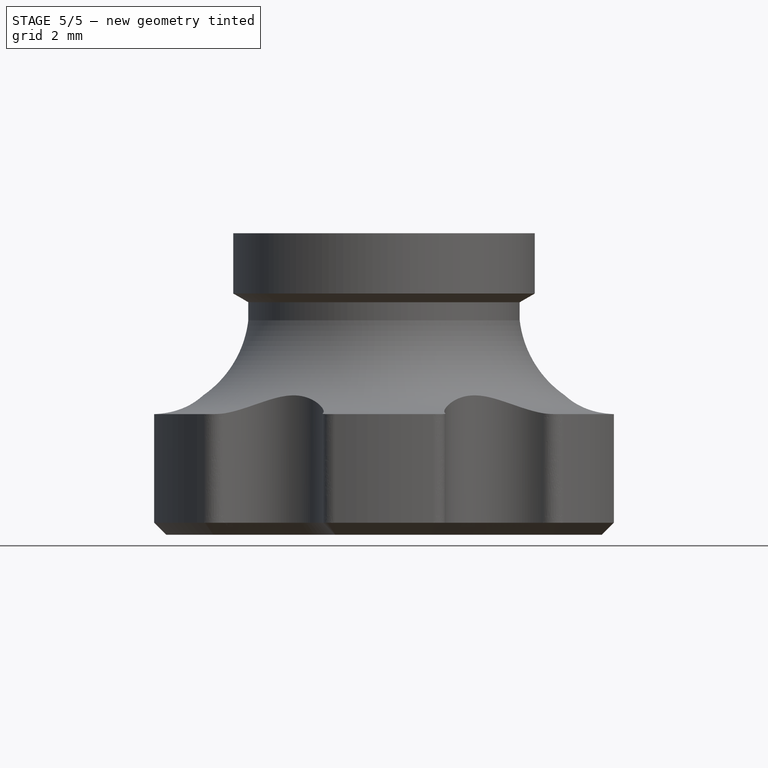
[diagram: stage 5 of 5 — front view after this stage's code; geometry added in this stage tinted green]
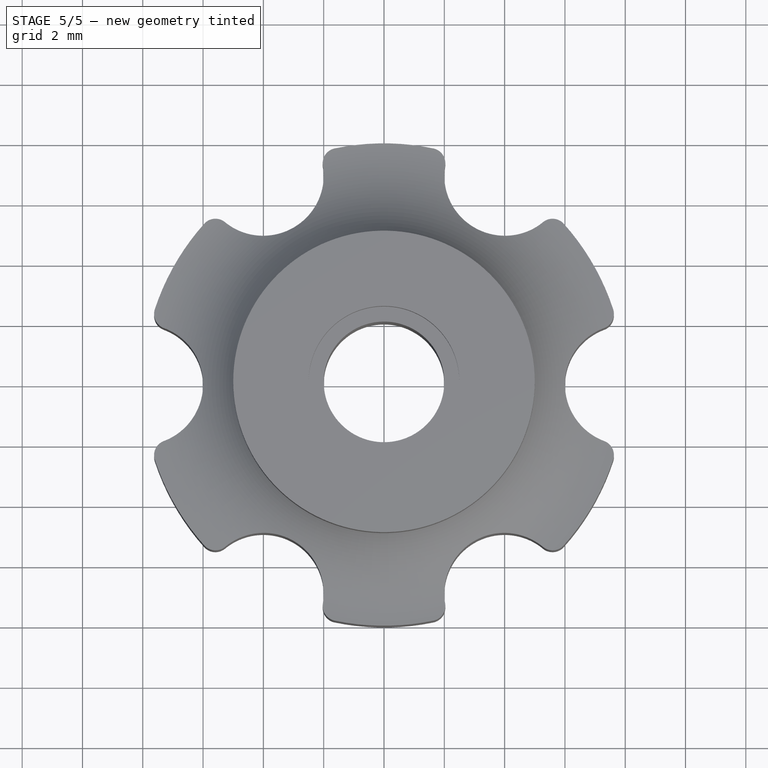
[diagram: stage 5 of 5 — top view after this stage's code; geometry added in this stage tinted green]
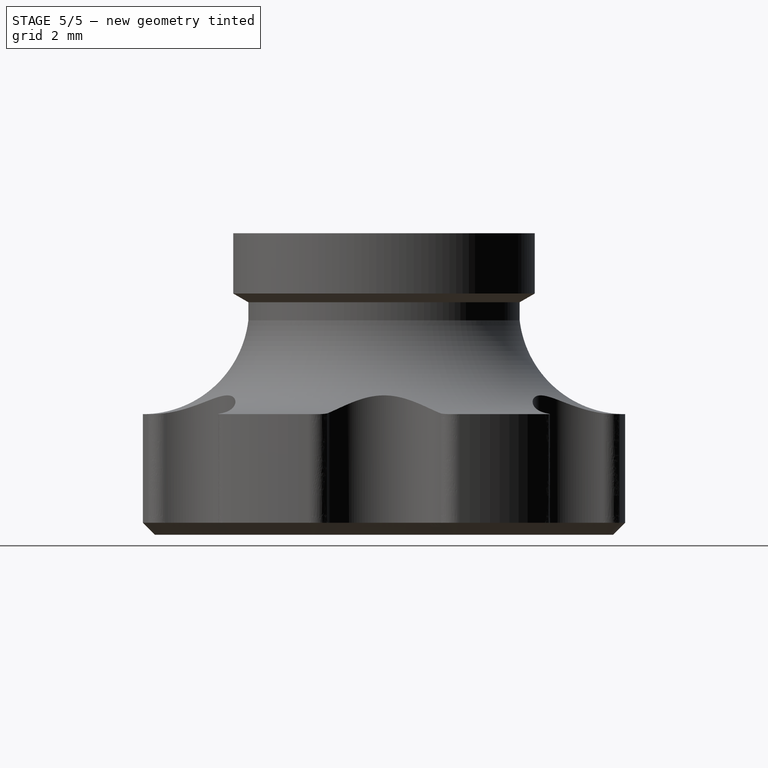
[diagram: stage 5 of 5 — right view after this stage's code; geometry added in this stage tinted green]
FEATURE [Sketcher::SketchObject] Sketch002
  ExternalGeometry = -> [Pocket]
  FullyConstrained = true
  MapMode = 5
  Placement = pos=(0,0,3.2) rot=(1,0,0;3.14159rad)
  Support = -> [Pocket]
  sketch-geometry (11):
    g0: LineSegment StartX=-1.62502 StartY=3.24759 StartZ=0 EndX=3.625 EndY=0.216525 EndZ=0
    g1: LineSegment StartX=3.625 StartY=-0.216507 StartZ=0 EndX=-1.625 EndY=-3.24759 EndZ=0
    g2: LineSegment StartX=-2 StartY=-3.03109 StartZ=0 EndX=-2 EndY=3.03109 EndZ=0
    g3: GeomPoint X=-2 Y=0 Z=0
    g4: GeomPoint X=0.999991 Y=1.73206 Z=0
    g5: GeomPoint X=1 Y=-1.73205 Z=0
    g6: LineSegment StartX=4e-16 StartY=-4e-16 StartZ=0 EndX=0.999991 EndY=1.73206 EndZ=0
    g7: LineSegment StartX=4e-16 StartY=-4e-16 StartZ=0 EndX=1 EndY=-1.73205 EndZ=0
    g8: LineSegment StartX=-2 StartY=3.03109 StartZ=0 EndX=-1.62502 EndY=3.24759 EndZ=0
    g9: LineSegment StartX=3.625 StartY=0.216525 StartZ=0 EndX=3.625 EndY=-0.216507 EndZ=0
    g10: LineSegment StartX=-2 StartY=-3.03109 StartZ=0 EndX=-1.625 EndY=-3.24759 EndZ=0
  constraints (28):
    c: PointOnObject(g0,g-3)
    c: PointOnObject(g0,g-5)
    c: PointOnObject(g1,g-5)
    c: PointOnObject(g1,g-4)
    c: PointOnObject(g2,g-4)
    c: PointOnObject(g2,g-3)
    c: Vertical(g2)
    c: PointOnObject(g3,g2)
    c: PointOnObject(g4,g0)
    c: PointOnObject(g5,g1)
    c: PointOnObject(g4,g-6)
    c: PointOnObject(g5,g-6)
    c: PointOnObject(g3,g-6)
    c: PointOnObject(g3,g-1)
    c: Coincident(g6,g-6)
    c: Coincident(g6,g4)
    c: Coincident(g7,g6)
    c: Coincident(g7,g5)
    c: Perpendicular(g1,g7)
    c: Perpendicular(g0,g6)
    c: Equal(g2,g0)
    c: Equal(g0,g1)
    c: Coincident(g8,g2)
    c: Coincident(g8,g0)
    c: Coincident(g9,g0)
    c: Coincident(g9,g1)
    c: Coincident(g10,g2)
    c: Coincident(g10,g1)
FEATURE [PartDesign::Pocket] Pocket001
  BaseFeature = -> Pocket
  Direction = (0,0,1)
  Length = 0.2
  Length2 = 5
  Placement = pos=(0,0,0) rot=(1,0,0;1.5708rad)
  Profile = -> Sketch002
  ReferenceAxis = -> Sketch002 [N_Axis]
  Type = 0
FEATURE [Sketcher::SketchObject] Sketch003
  ExternalGeometry = -> [Pocket001]
  FullyConstrained = true
  MapMode = 5
  Support = -> [XY_Plane]
  sketch-geometry (11):
    g0: Circle CenterX=0 CenterY=0 CenterZ=0 NormalX=0 NormalY=0 NormalZ=1 AngleXU=0 Radius=4.18579
    g1: Circle CenterX=-3 CenterY=5.19615 CenterZ=0 NormalX=0 NormalY=0 NormalZ=1 AngleXU=0 Radius=1.4
    g2: Circle CenterX=3 CenterY=5.19615 CenterZ=0 NormalX=0 NormalY=0 NormalZ=1 AngleXU=0 Radius=1.4
    g3: Circle CenterX=6 CenterY=0 CenterZ=0 NormalX=0 NormalY=0 NormalZ=1 AngleXU=0 Radius=1.4
    g4: Circle CenterX=3 CenterY=-5.19615 CenterZ=0 NormalX=0 NormalY=0 NormalZ=1 AngleXU=0 Radius=1.4
    g5: Circle CenterX=-3 CenterY=-5.19615 CenterZ=0 NormalX=0 NormalY=0 NormalZ=1 AngleXU=0 Radius=1.4
    g6: Circle CenterX=-6 CenterY=0 CenterZ=0 NormalX=0 NormalY=0 NormalZ=1 AngleXU=0 Radius=1.4
    g7: LineSegment StartX=3 StartY=-5.19615 StartZ=0 EndX=-3 EndY=5.19615 EndZ=0
    g8: LineSegment StartX=3 StartY=5.19615 StartZ=0 EndX=-3 EndY=-5.19615 EndZ=0
    g9: GeomPoint X=2.3 Y=3.98372 Z=0
    g10: GeomPoint X=1.8125 Y=3.13934 Z=0
  constraints (26):
    c: Coincident(g0,g-1)
    c: PointOnObject(g-3,g0)
    c: PointOnObject(g1,g-4)
    c: PointOnObject(g2,g-4)
    c: PointOnObject(g3,g-4)
    c: PointOnObject(g4,g-4)
    c: PointOnObject(g5,g-4)
    c: PointOnObject(g6,g-4)
    c: PointOnObject(g6,g-1)
    c: PointOnObject(g3,g-1)
    c: Coincident(g7,g4)
    c: Coincident(g7,g1)
    c: Coincident(g8,g2)
    c: Coincident(g8,g5)
    c: Symmetric(g-5,g-5,g8)
    c: Symmetric(g-6,g-6,g7)
    c: Equal(g2,g1)
    c: Equal(g1,g6)
    c: Equal(g6,g5)
    c: Equal(g5,g3)
    c: Equal(g3,g4)
    c: PointOnObject(g9,g2)
    c: PointOnObject(g10,g8)
    c: PointOnObject(g10,g-5)
    c: PointOnObject(g9,g8)
    c: Distance(g9,g2) = 1.4
FEATURE [PartDesign::Pocket] Pocket002
  BaseFeature = -> Pocket001
  Direction = (0,0,-1)
  Length = 5
  Length2 = 5
  Midplane = true
  Placement = pos=(0,0,0) rot=(1,0,0;1.5708rad)
  Profile = -> Sketch003
  ReferenceAxis = -> Sketch003 [N_Axis]
  Type = 1
FEATURE [PartDesign::Fillet] Fillet
  Base = -> Pocket002 [Edge100,Edge98,Edge101,Edge103,Edge97,Edge104,Edge96,Edge106,Edge107,Edge94,Edge95,Edge108]
  BaseFeature = -> Pocket002
  Placement = pos=(0,0,0) rot=(1,0,0;1.5708rad)
  Radius = 0.5
  SupportTransform = false
  UseAllEdges = false
FEATURE [PartDesign::Chamfer] Chamfer
  Angle = 45
  Base = -> Fillet [Edge67]
  BaseFeature = -> Fillet
  ChamferType = 0
  FlipDirection = false
  Placement = pos=(0,0,0) rot=(1,0,0;1.5708rad)
  Size = 0.4
  Size2 = 1
  SupportTransform = false
  UseAllEdges = false
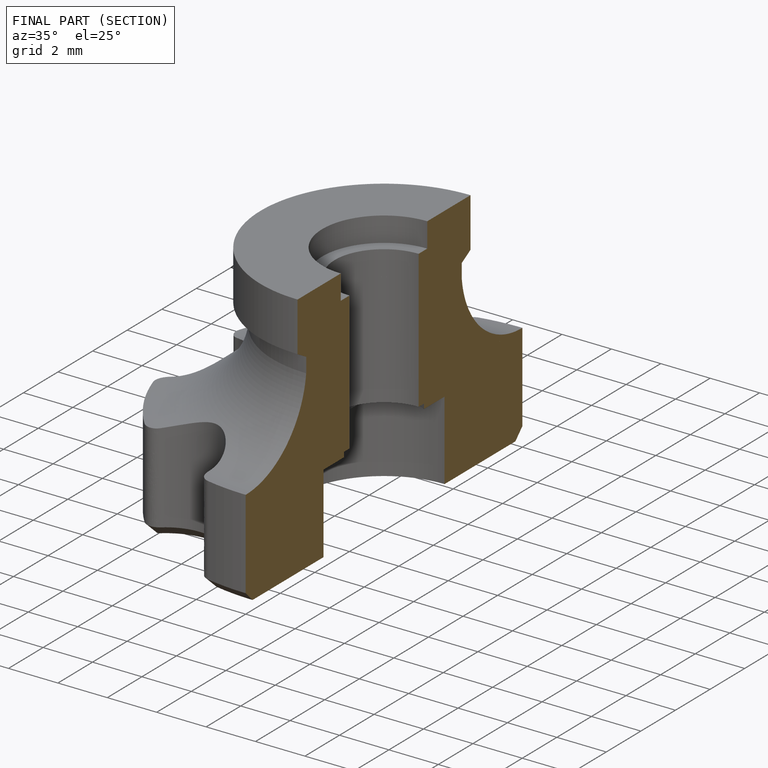
[diagram: finished part — half-section view (interior)]
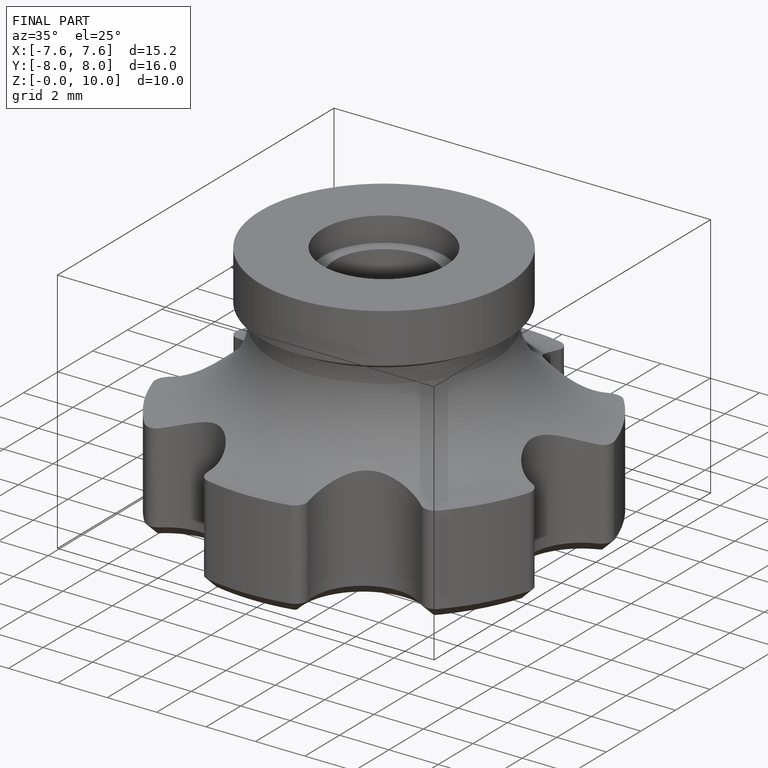
[diagram: finished part — iso view with bounding-box wireframe]
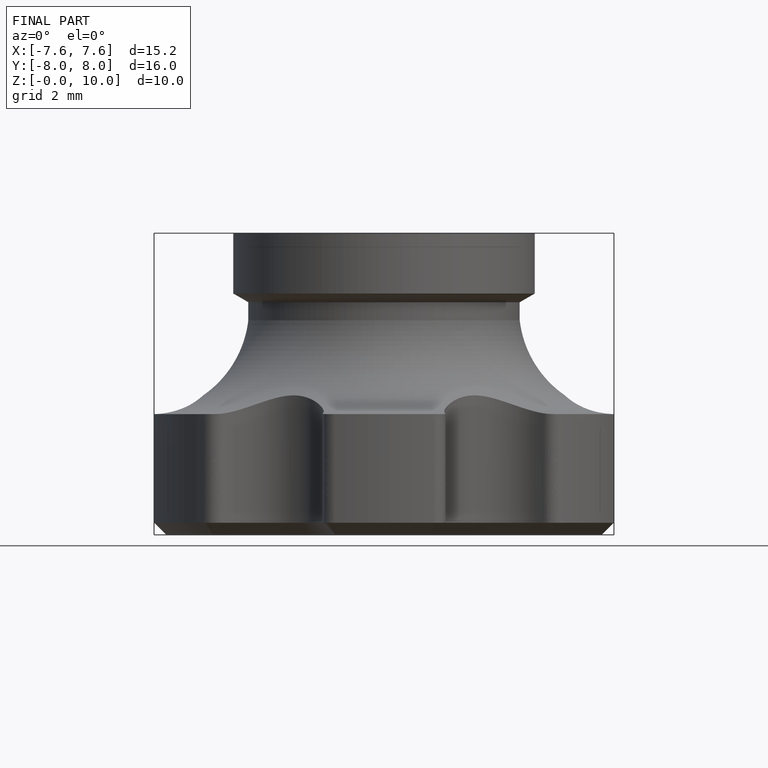
[diagram: finished part — front view with bounding-box wireframe]
